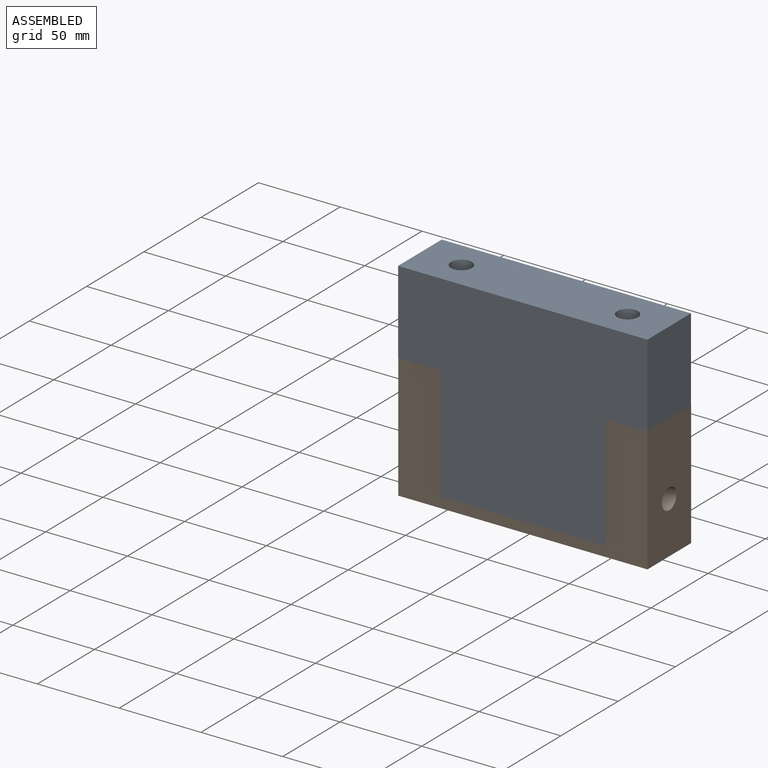
[diagram: assembled view]
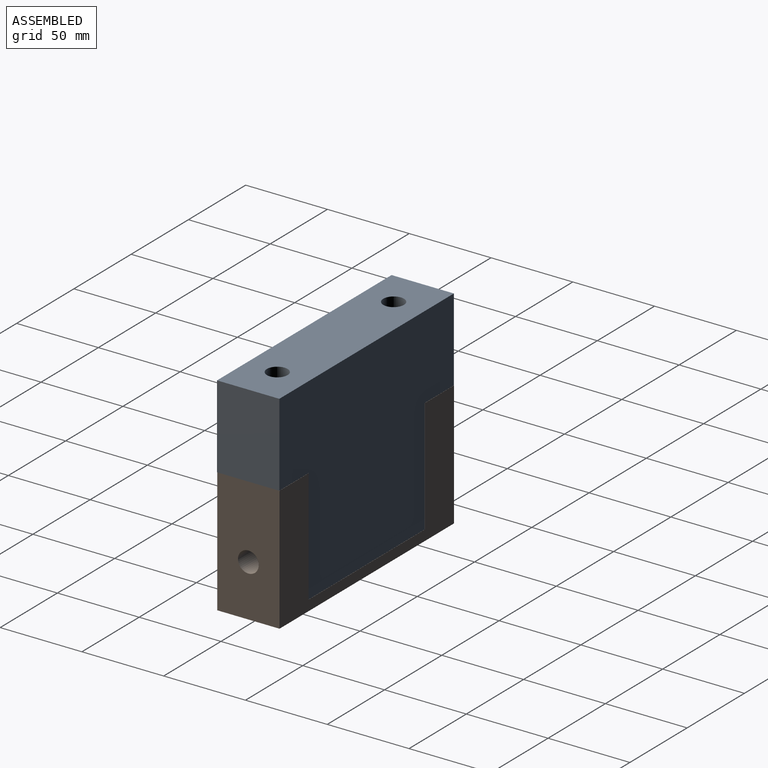
[diagram: assembled view, second angle]
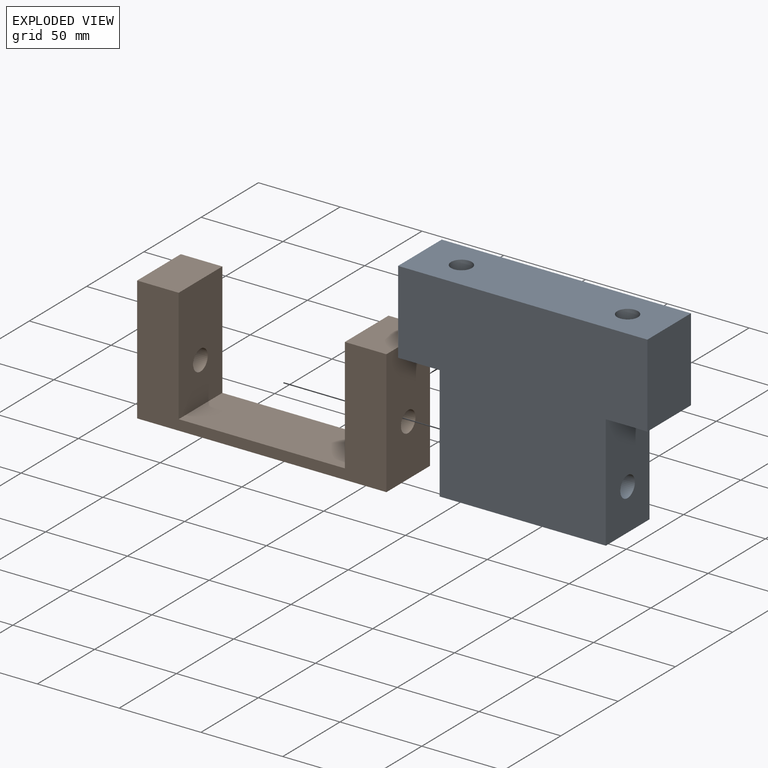
[diagram: exploded view]
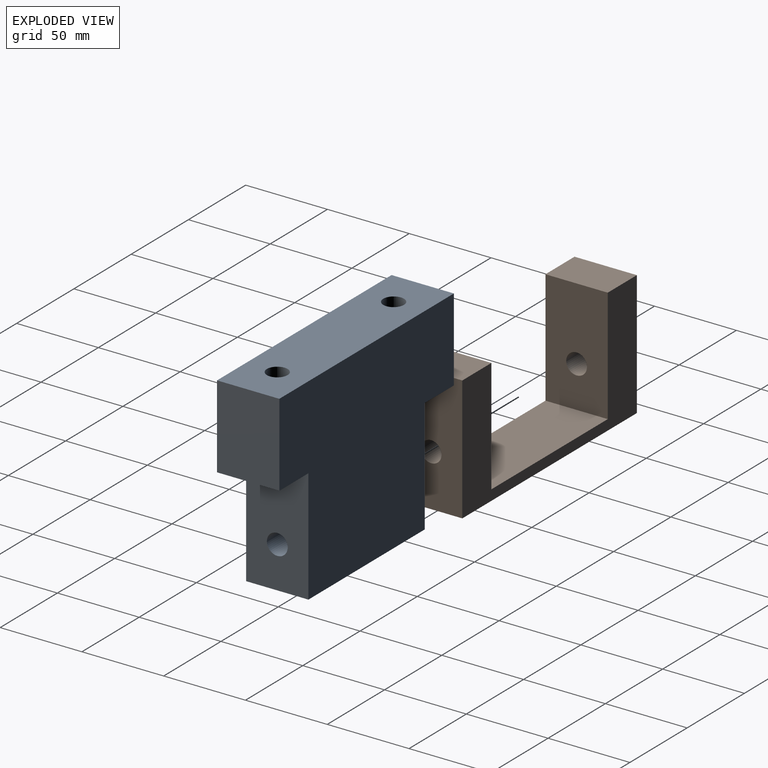
[diagram: exploded view, second angle]
ASSEMBLY  parts=2 mates=2
PART A: 18 faces, bbox 152.4x38.1x120.7 mm
  f0: plane 50.8x38.1mm, normal (-1,0,0), area 1935.5mm2, adj f2,f3,f4,f9
  f1: plane 50.8x38.1mm, normal (1,0,0), area 1935.5mm2, adj f2,f3,f4,f10
  f2: plane 152.4x120.65mm, normal (0,1,0), area 14838.7mm2, adj f0,f1,f4,f9,f10,f11,f12,f13
  f3: plane 152.4x120.65mm, normal (0,-1,0), area 14838.7mm2, adj f0,f1,f4,f9,f10,f11,f12,f13
  f4: plane 152.4x38.1mm, normal (0,0,1), area 5553.1mm2, adj f0,f1,f2,f3,f6,f8
  f5: cone r=0mm half-angle=59deg, axis (0,0,1), area 147.8mm2, adj f6
  f6: cylinder r=6.35mm len=28.58mm, axis (0,0,1), area 1140.1mm2, adj f4,f5
  f7: cone r=0mm half-angle=59deg, axis (0,0,1), area 147.8mm2, adj f8
  f8: cylinder r=6.35mm len=28.58mm, axis (0,0,1), area 1140.1mm2, adj f4,f7
  f9: plane 38.1x25.4mm, normal (0,0,-1), area 967.7mm2, adj f0,f2,f3,f13
  f10: plane 38.1x25.4mm, normal (0,0,-1), area 967.7mm2, adj f1,f2,f3,f11
  f11: plane 69.85x38.1mm, normal (1,0,0), area 2534.6mm2, adj f2,f3,f10,f12,f17
  f12: plane 101.6x38.1mm, normal (0,0,-1), area 3871mm2, adj f2,f3,f11,f13
  f13: plane 69.85x38.1mm, normal (-1,0,0), area 2534.6mm2, adj f2,f3,f9,f12,f15
  f14: cone r=0mm half-angle=59deg, axis (-1,0,0), area 147.8mm2, adj f15
  f15: cylinder r=6.35mm len=28.58mm, axis (-1,0,0), area 1140.1mm2, adj f13,f14
  f16: cone r=0mm half-angle=59deg, axis (1,0,0), area 147.8mm2, adj f17
  f17: cylinder r=6.35mm len=28.58mm, axis (1,0,0), area 1140.1mm2, adj f11,f16
PART B: 12 faces, bbox 152.4x38.1x76.2 mm
  f0: plane 38.1x25.4mm, normal (0,0,1), area 967.7mm2, adj f1,f7,f8,f9
  f1: plane 76.2x38.1mm, normal (-1,0,0), area 2776.5mm2, adj f0,f2,f8,f9,f10
  f2: plane 152.4x38.1mm, normal (0,0,-1), area 5806.4mm2, adj f1,f3,f8,f9
  f3: plane 76.2x38.1mm, normal (1,0,0), area 2776.5mm2, adj f2,f4,f8,f9,f11
  f4: plane 38.1x25.4mm, normal (0,0,1), area 967.7mm2, adj f3,f5,f8,f9
  f5: plane 69.85x38.1mm, normal (-1,0,0), area 2534.6mm2, adj f4,f6,f8,f9,f11
  f6: plane 101.6x38.1mm, normal (0,0,1), area 3871mm2, adj f5,f7,f8,f9
  f7: plane 69.85x38.1mm, normal (1,0,0), area 2534.6mm2, adj f0,f6,f8,f9,f10
  f8: plane 152.4x76.2mm, normal (0,-1,0), area 4516.1mm2, adj f0,f1,f2,f3,f4,f5,f6,f7
  f9: plane 152.4x76.2mm, normal (0,1,0), area 4516.1mm2, adj f0,f1,f2,f3,f4,f5,f6,f7
  f10: cylinder r=6.35mm len=25.4mm, axis (-1,0,0), area 1013.4mm2, adj f1,f7
  f11: cylinder r=6.35mm len=25.4mm, axis (-1,0,0), area 1013.4mm2, adj f3,f5
PLACE A at identity fixed
PLACE B t=(0,0.11,-127)mm
MATE planar B.f7 <-> A.f13  axis (1,0,0) through (-50.8,0.11,-85.25)mm
MATE planar B.f6 <-> A.f12  axis (0,0,1) through (0,0.11,-120.65)mm
